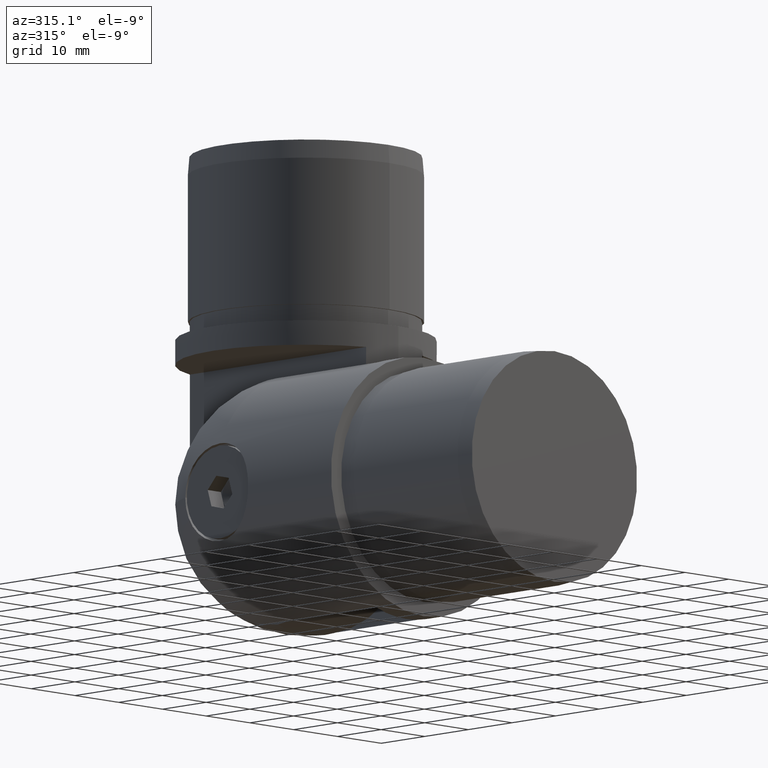
[diagram: clean part render]
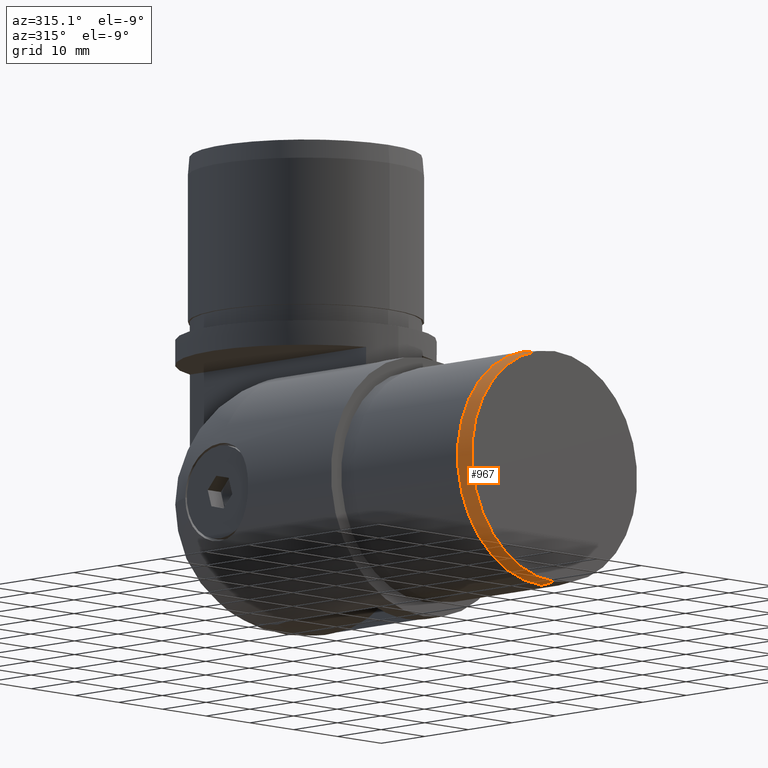
[diagram: same view with one face highlighted and labeled with its STEP entity id]
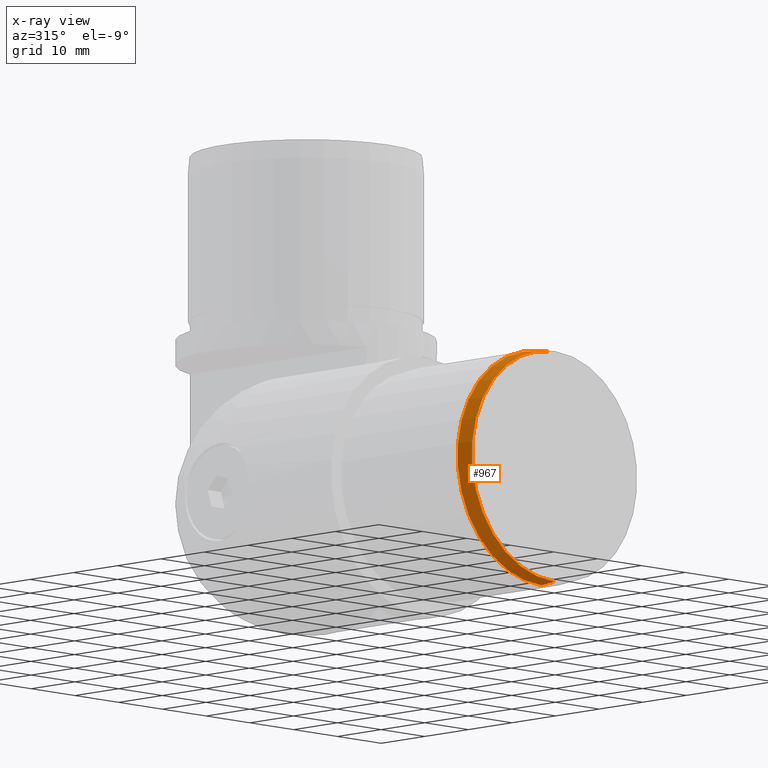
[diagram: x-ray of the same camera — body ghosted, the highlighted face saturated]
A machine part, auxiliary view. The second image highlights one B-rep face of the part: STEP entity #967.
The next image is the same camera in x-ray: the body ghosted, the highlighted face saturated — about 0% of this face is hidden behind the body in this view.
In plain terms, the highlighted conical surface has half-angle 4.764 deg.
Its self-contained STEP definition (entity closure, byte-faithful):
#13 = EDGE_CURVE ( 'NONE', #3050, #350, #1612, .T. ) ;
#350 = VERTEX_POINT ( 'NONE', #4925 ) ;
#605 = CARTESIAN_POINT ( 'NONE',  ( 0.0000000000000000000, -6.123233995736109987E-18, 18.89999999999999858 ) ) ;
#733 = DIRECTION ( 'NONE',  ( 0.0000000000000000000, 0.9965457582448795648, 0.08304547985373997299 ) ) ;
#764 = DIRECTION ( 'NONE',  ( 0.0000000000000000000, 1.000000000000000000, 0.0000000000000000000 ) ) ;
#967 = ADVANCED_FACE ( 'NONE', ( #3025 ), #5440, .T. ) ;
#973 = EDGE_CURVE ( 'NONE', #3050, #2937, #4429, .T. ) ;
#1295 = AXIS2_PLACEMENT_3D ( 'NONE', #5439, #764, #2626 ) ;
#1612 = LINE ( 'NONE', #3079, #1747 ) ;
#1630 = DIRECTION ( 'NONE',  ( 0.0000000000000000000, 0.0000000000000000000, -1.000000000000000000 ) ) ;
#1642 = DIRECTION ( 'NONE',  ( 0.0000000000000000000, 0.0000000000000000000, -1.000000000000000000 ) ) ;
#1644 = CARTESIAN_POINT ( 'NONE',  ( 0.0000000000000000000, -6.123233995736109987E-18, 0.0000000000000000000 ) ) ;
#1658 = DIRECTION ( 'NONE',  ( 0.0000000000000000000, -1.000000000000000000, 0.0000000000000000000 ) ) ;
#1747 = VECTOR ( 'NONE', #733, 1000.000000000000227 ) ;
#1849 = EDGE_CURVE ( 'NONE', #2937, #2301, #4991, .T. ) ;
#2045 = CARTESIAN_POINT ( 'NONE',  ( 0.0000000000000000000, 3.000000000000000000, 0.0000000000000000000 ) ) ;
#2288 = CARTESIAN_POINT ( 'NONE',  ( 2.314582450388494852E-15, -6.123233995736109987E-18, -18.89999999999999858 ) ) ;
#2301 = VERTEX_POINT ( 'NONE', #3672 ) ;
#2626 = DIRECTION ( 'NONE',  ( 0.0000000000000000000, 0.0000000000000000000, 1.000000000000000000 ) ) ;
#2883 = ORIENTED_EDGE ( 'NONE', *, *, #973, .F. ) ;
#2937 = VERTEX_POINT ( 'NONE', #5194 ) ;
#3025 = FACE_OUTER_BOUND ( 'NONE', #5093, .T. ) ;
#3031 = ORIENTED_EDGE ( 'NONE', *, *, #1849, .F. ) ;
#3050 = VERTEX_POINT ( 'NONE', #605 ) ;
#3079 = CARTESIAN_POINT ( 'NONE',  ( 0.0000000000000000000, -6.123233995736109987E-18, 18.89999999999999858 ) ) ;
#3672 = CARTESIAN_POINT ( 'NONE',  ( 0.0000000000000000000, 3.000000000000000000, -19.14999999999999858 ) ) ;
#3678 = ORIENTED_EDGE ( 'NONE', *, *, #4301, .T. ) ;
#3756 = CIRCLE ( 'NONE', #5458, 19.14999999999999858 ) ;
#4066 = DIRECTION ( 'NONE',  ( 0.0000000000000000000, -1.000000000000000000, 0.0000000000000000000 ) ) ;
#4174 = DIRECTION ( 'NONE',  ( 1.017013810865387488E-17, 0.9965457582448795648, -0.08304547985373997299 ) ) ;
#4199 = VECTOR ( 'NONE', #4174, 1000.000000000000227 ) ;
#4301 = EDGE_CURVE ( 'NONE', #350, #2301, #3756, .T. ) ;
#4429 = CIRCLE ( 'NONE', #5621, 18.89999999999999858 ) ;
#4898 = ORIENTED_EDGE ( 'NONE', *, *, #13, .T. ) ;
#4925 = CARTESIAN_POINT ( 'NONE',  ( 2.345198620367179823E-15, 3.000000000000000000, 19.14999999999999858 ) ) ;
#4991 = LINE ( 'NONE', #2288, #4199 ) ;
#5093 = EDGE_LOOP ( 'NONE', ( #3031, #2883, #4898, #3678 ) ) ;
#5194 = CARTESIAN_POINT ( 'NONE',  ( 2.329890535377839901E-15, -6.123233995736109987E-18, -18.89999999999999858 ) ) ;
#5439 = CARTESIAN_POINT ( 'NONE',  ( 0.0000000000000000000, -6.123233995736109987E-18, 0.0000000000000000000 ) ) ;
#5440 = CONICAL_SURFACE ( 'NONE', #1295, 18.89999999999999858, 0.08314123188844194101 ) ;
#5458 = AXIS2_PLACEMENT_3D ( 'NONE', #2045, #1658, #1642 ) ;
#5621 = AXIS2_PLACEMENT_3D ( 'NONE', #1644, #4066, #1630 ) ;